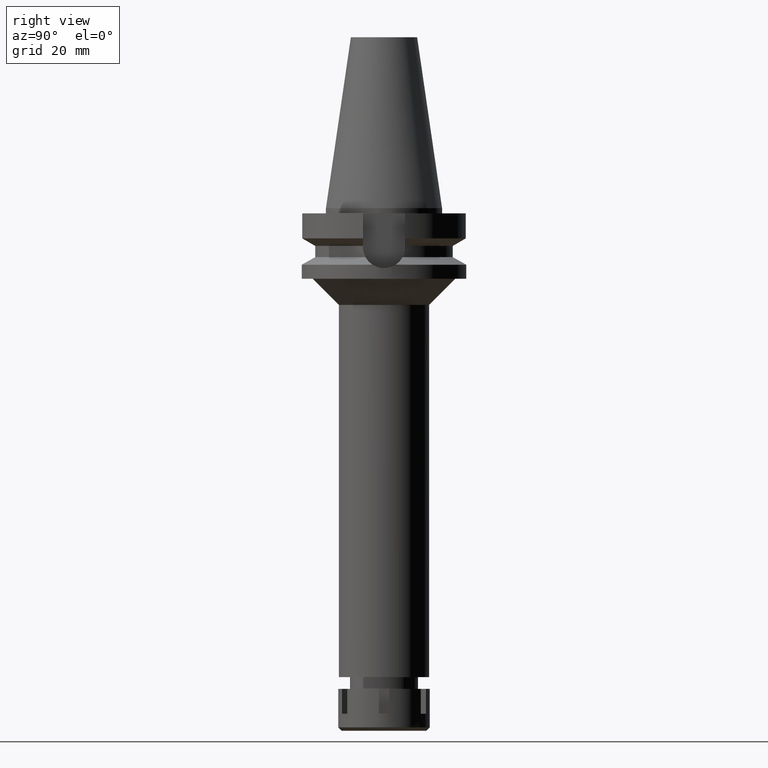
[diagram: clean part render]
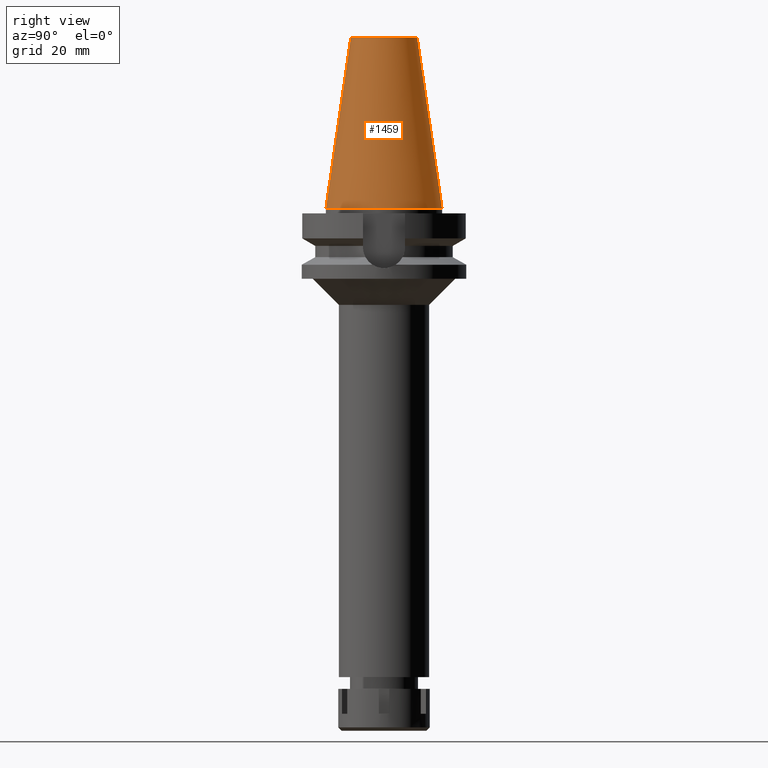
[diagram: same view with one face highlighted and labeled with its STEP entity id]
A machine part, right view. The second image highlights one B-rep face of the part: STEP entity #1459.
In plain terms, the highlighted conical surface has half-angle 8.297 deg.
Its self-contained STEP definition (entity closure, byte-faithful):
#40 = CARTESIAN_POINT ( 'NONE',  ( 0.0000000000000000000, 12.68766899429999917, 65.40000000000000568 ) ) ;
#403 = DIRECTION ( 'NONE',  ( 0.0000000000000000000, 1.000000000000000000, 0.0000000000000000000 ) ) ;
#467 = VERTEX_POINT ( 'NONE', #2181 ) ;
#507 = ORIENTED_EDGE ( 'NONE', *, *, #1037, .F. ) ;
#646 = CARTESIAN_POINT ( 'NONE',  ( 0.0000000000000000000, 12.68766899429999917, 65.40000000000000568 ) ) ;
#648 = AXIS2_PLACEMENT_3D ( 'NONE', #2278, #1226, #403 ) ;
#804 = CARTESIAN_POINT ( 'NONE',  ( 0.0000000000000000000, 1.625106302469000024E-14, 32.70000000000000284 ) ) ;
#974 = ORIENTED_EDGE ( 'NONE', *, *, #1532, .T. ) ;
#994 = AXIS2_PLACEMENT_3D ( 'NONE', #804, #1381, #2496 ) ;
#1037 = EDGE_CURVE ( 'NONE', #1072, #467, #1735, .T. ) ;
#1072 = VERTEX_POINT ( 'NONE', #40 ) ;
#1100 = ORIENTED_EDGE ( 'NONE', *, *, #2337, .F. ) ;
#1226 = DIRECTION ( 'NONE',  ( 0.0000000000000000000, 0.0000000000000000000, -1.000000000000000000 ) ) ;
#1381 = DIRECTION ( 'NONE',  ( 0.0000000000000000000, 0.0000000000000000000, -1.000000000000000000 ) ) ;
#1459 = ADVANCED_FACE ( 'NONE', ( #3317 ), #1579, .T. ) ;
#1532 = EDGE_CURVE ( 'NONE', #1072, #2066, #3621, .T. ) ;
#1579 = CONICAL_SURFACE ( 'NONE', #994, 17.45633449714999941, 0.1448099680379422438 ) ;
#1700 = AXIS2_PLACEMENT_3D ( 'NONE', #2061, #2845, #3447 ) ;
#1735 = LINE ( 'NONE', #646, #2400 ) ;
#1762 = VECTOR ( 'NONE', #2608, 1000.000000000000114 ) ;
#1766 = EDGE_CURVE ( 'NONE', #2066, #2290, #2856, .T. ) ;
#2061 = CARTESIAN_POINT ( 'NONE',  ( 0.0000000000000000000, 1.625106302469000024E-14, 65.40000000000000568 ) ) ;
#2066 = VERTEX_POINT ( 'NONE', #3107 ) ;
#2181 = CARTESIAN_POINT ( 'NONE',  ( 0.0000000000000000000, 22.22500000000000142, 9.947598300640998705E-14 ) ) ;
#2278 = CARTESIAN_POINT ( 'NONE',  ( 0.0000000000000000000, 1.625106302469000024E-14, 1.136868377215999875E-13 ) ) ;
#2290 = VERTEX_POINT ( 'NONE', #2359 ) ;
#2337 = EDGE_CURVE ( 'NONE', #467, #2290, #2592, .T. ) ;
#2359 = CARTESIAN_POINT ( 'NONE',  ( 0.0000000000000000000, -22.22500000000000142, 1.136868377215999875E-13 ) ) ;
#2400 = VECTOR ( 'NONE', #2601, 1000.000000000000114 ) ;
#2496 = DIRECTION ( 'NONE',  ( 0.0000000000000000000, -1.000000000000000000, 0.0000000000000000000 ) ) ;
#2592 = CIRCLE ( 'NONE', #648, 22.22500000000000142 ) ;
#2601 = DIRECTION ( 'NONE',  ( 0.0000000000000000000, 0.1443043893539925626, -0.9895333461855498891 ) ) ;
#2608 = DIRECTION ( 'NONE',  ( 0.0000000000000000000, -0.1443043893539925626, -0.9895333461855498891 ) ) ;
#2638 = CARTESIAN_POINT ( 'NONE',  ( 0.0000000000000000000, -12.68766899429999917, 65.40000000000000568 ) ) ;
#2845 = DIRECTION ( 'NONE',  ( 0.0000000000000000000, 0.0000000000000000000, -1.000000000000000000 ) ) ;
#2856 = LINE ( 'NONE', #2638, #1762 ) ;
#3107 = CARTESIAN_POINT ( 'NONE',  ( 0.0000000000000000000, -12.68766899429999917, 65.40000000000000568 ) ) ;
#3249 = EDGE_LOOP ( 'NONE', ( #974, #3445, #1100, #507 ) ) ;
#3317 = FACE_OUTER_BOUND ( 'NONE', #3249, .T. ) ;
#3445 = ORIENTED_EDGE ( 'NONE', *, *, #1766, .T. ) ;
#3447 = DIRECTION ( 'NONE',  ( 0.0000000000000000000, 1.000000000000000000, 0.0000000000000000000 ) ) ;
#3621 = CIRCLE ( 'NONE', #1700, 12.68766899429999917 ) ;